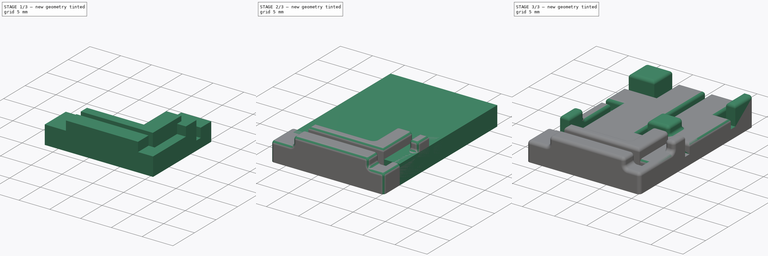
[diagram: build sequence overview — one tinted view per stage of 3, left to right]
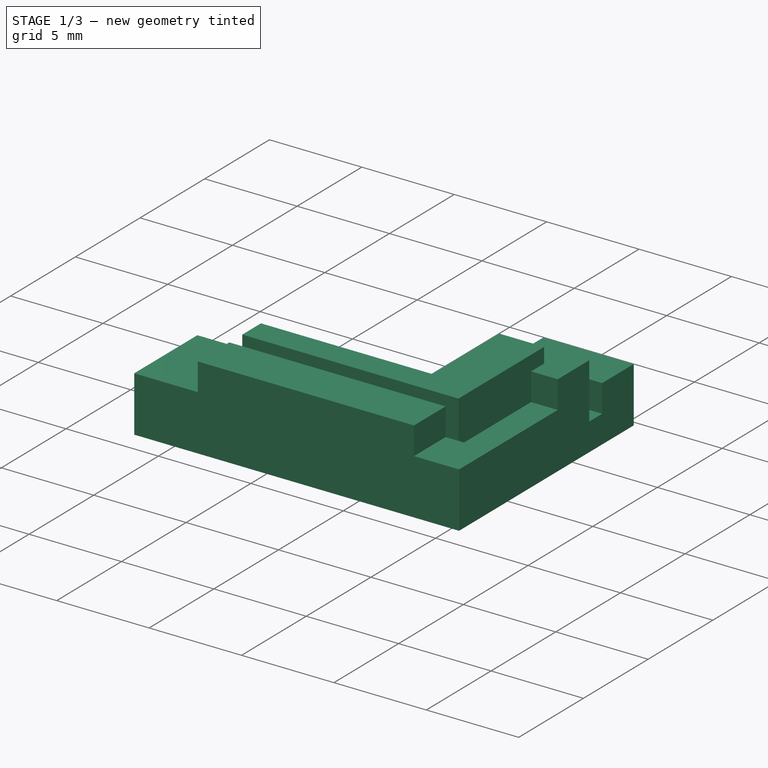
[diagram: stage 1 of 3 — iso view after this stage's code; geometry added in this stage tinted green]
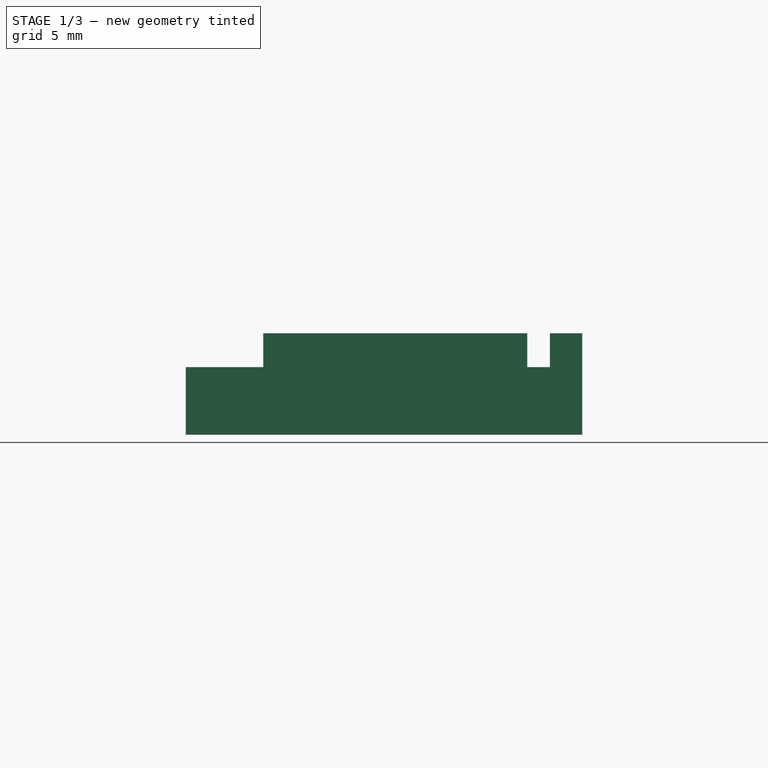
[diagram: stage 1 of 3 — front view after this stage's code; geometry added in this stage tinted green]
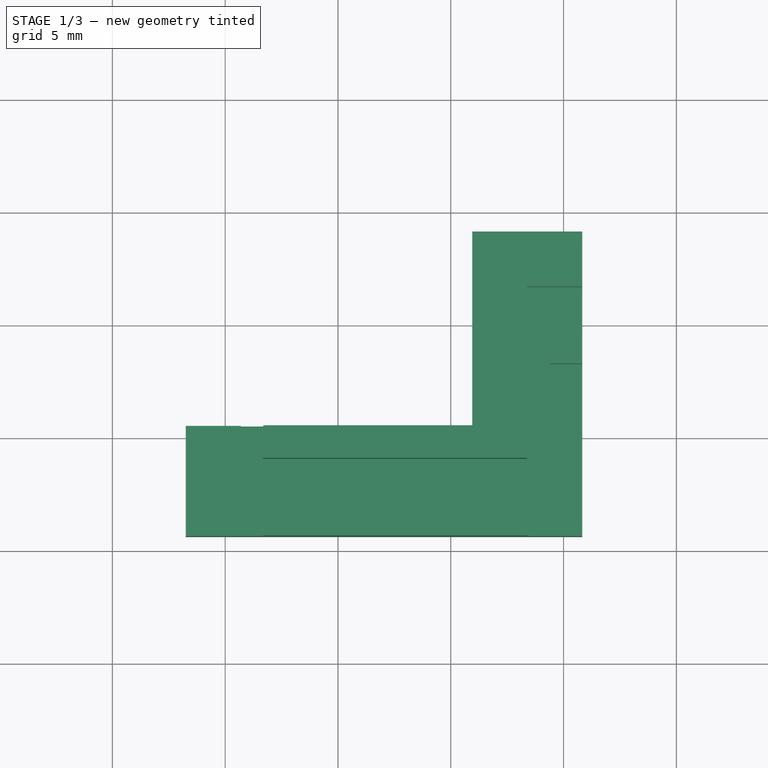
[diagram: stage 1 of 3 — top view after this stage's code; geometry added in this stage tinted green]
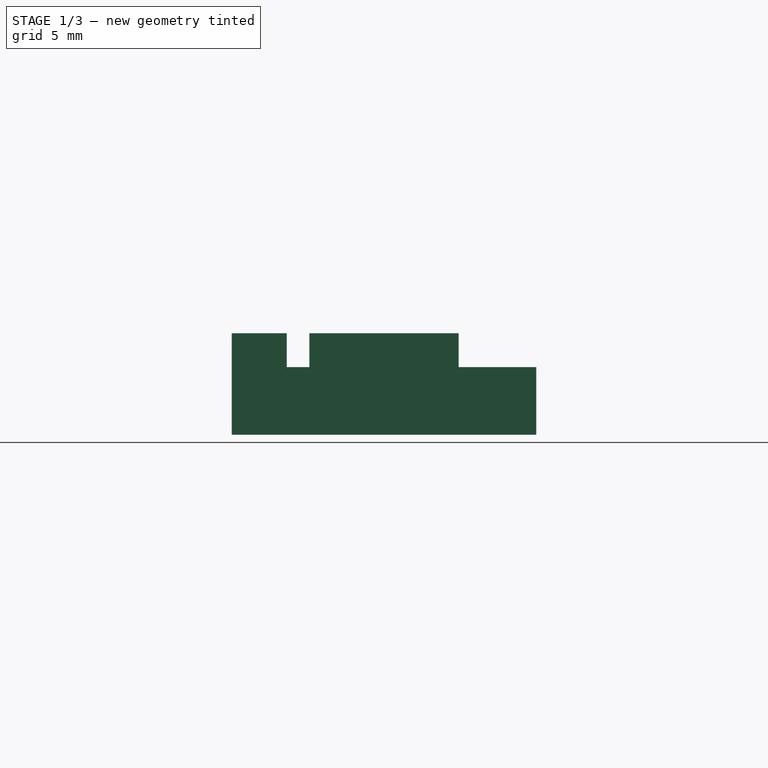
[diagram: stage 1 of 3 — right view after this stage's code; geometry added in this stage tinted green]
FCSTD DOCUMENT  (FreeCAD 0.19R23578 (Git))
Label: PCBGrid
License: All rights reserved
LicenseURL: http://en.wikipedia.org/wiki/All_rights_reserved
objects: Sketcher::SketchObject×7, PartDesign::Pad×4, PartDesign::Pocket×2, PartDesign::Fillet×2, PartDesign::Body×2, PartDesign::ShapeBinder×1
note: 26 computed .brp shape members not serialized (recipe doc carries the construction recipe); baked Part::Feature solids carry a one-line shape summary decoded from their .brp

FEATURE [Sketcher::SketchObject] Sketch
  MapMode = 5
  Support = -> [XY_Plane]
  sketch-geometry (136):
    g0: LineSegment StartX=-8.89 StartY=11.43 StartZ=0 EndX=-8.89 EndY=-11.43 EndZ=0
    g1: LineSegment StartX=-6.35 StartY=11.43 StartZ=0 EndX=-6.35 EndY=-11.43 EndZ=0
    g2: LineSegment StartX=-8.89 StartY=11.43 StartZ=0 EndX=-6.35 EndY=11.43 EndZ=0
    g3: LineSegment StartX=-6.35 StartY=11.43 StartZ=0 EndX=-3.81 EndY=11.43 EndZ=0
    g4: LineSegment StartX=-3.81 StartY=11.43 StartZ=0 EndX=-1.27 EndY=11.43 EndZ=0
    g5: LineSegment StartX=-1.27 StartY=11.43 StartZ=0 EndX=1.27 EndY=11.43 EndZ=0
    g6: LineSegment StartX=1.27 StartY=11.43 StartZ=0 EndX=3.81 EndY=11.43 EndZ=0
    g7: LineSegment StartX=3.81 StartY=11.43 StartZ=0 EndX=6.35 EndY=11.43 EndZ=0
    g8: LineSegment StartX=6.35 StartY=11.43 StartZ=0 EndX=8.89 EndY=11.43 EndZ=0
    g9: LineSegment StartX=8.89 StartY=11.43 StartZ=0 EndX=11.43 EndY=11.43 EndZ=0
    g10: LineSegment StartX=-8.89 StartY=11.43 StartZ=0 EndX=-11.43 EndY=11.43 EndZ=0
    g11: LineSegment StartX=-11.43 StartY=11.43 StartZ=0 EndX=-11.43 EndY=8.89 EndZ=0
    g12: LineSegment StartX=-11.43 StartY=8.89 StartZ=0 EndX=-11.43 EndY=6.35 EndZ=0
    g13: LineSegment StartX=-11.43 StartY=6.35 StartZ=0 EndX=-11.43 EndY=3.81 EndZ=0
    g14: LineSegment StartX=-11.43 StartY=3.81 StartZ=0 EndX=-11.43 EndY=1.27 EndZ=0
    g15: LineSegment StartX=-11.43 StartY=1.27 StartZ=0 EndX=-11.43 EndY=-1.27 EndZ=0
    g16: LineSegment StartX=-11.43 StartY=-1.27 StartZ=0 EndX=-11.43 EndY=-3.81 EndZ=0
    g17: LineSegment StartX=-11.43 StartY=-3.81 StartZ=0 EndX=-11.43 EndY=-6.35 EndZ=0
    g18: LineSegment StartX=-11.43 StartY=-6.35 StartZ=0 EndX=-11.43 EndY=-8.89 EndZ=0
    g19: LineSegment StartX=-11.43 StartY=-8.89 StartZ=0 EndX=-11.43 EndY=-11.43 EndZ=0
    g20: LineSegment StartX=-11.43 StartY=-11.43 StartZ=0 EndX=11.43 EndY=-11.43 EndZ=0
    g21: LineSegment StartX=11.43 StartY=-11.43 StartZ=0 EndX=11.43 EndY=11.43 EndZ=0
    g22: LineSegment StartX=-3.81 StartY=11.43 StartZ=0 EndX=-3.81 EndY=-11.43 EndZ=0
    g23: LineSegment StartX=-1.27 StartY=11.43 StartZ=0 EndX=-1.27 EndY=-11.43 EndZ=0
    g24: LineSegment StartX=1.27 StartY=11.43 StartZ=0 EndX=1.27 EndY=-11.43 EndZ=0
    g25: LineSegment StartX=3.81 StartY=11.43 StartZ=0 EndX=3.81 EndY=-11.43 EndZ=0
    g26: LineSegment StartX=6.35 StartY=11.43 StartZ=0 EndX=6.35 EndY=-11.43 EndZ=0
    g27: LineSegment StartX=8.89 StartY=11.43 StartZ=0 EndX=8.89 EndY=-11.43 EndZ=0
    g28: LineSegment StartX=-11.43 StartY=8.89 StartZ=0 EndX=11.43 EndY=8.89 EndZ=0
    g29: LineSegment StartX=-11.43 StartY=6.35 StartZ=0 EndX=11.43 EndY=6.35 EndZ=0
    g30: LineSegment StartX=-11.43 StartY=3.81 StartZ=0 EndX=11.43 EndY=3.81 EndZ=0
    g31: LineSegment StartX=-11.43 StartY=1.27 StartZ=0 EndX=11.43 EndY=1.27 EndZ=0
    g32: LineSegment StartX=-11.43 StartY=-1.27 StartZ=0 EndX=11.43 EndY=-1.27 EndZ=0
    g33: LineSegment StartX=-11.43 StartY=-3.81 StartZ=0 EndX=11.43 EndY=-3.81 EndZ=0
    g34: LineSegment StartX=-11.43 StartY=-6.35 StartZ=0 EndX=11.43 EndY=-6.35 EndZ=0
    g35: LineSegment StartX=-11.43 StartY=-8.89 StartZ=0 EndX=11.43 EndY=-8.89 EndZ=0
    g36: Circle CenterX=-11.43 CenterY=11.43 CenterZ=0 NormalX=0 NormalY=0 NormalZ=1 AngleXU=0 Radius=0.6
    g37: Circle CenterX=-8.89 CenterY=11.43 CenterZ=0 NormalX=0 NormalY=0 NormalZ=1 AngleXU=0 Radius=0.6
    g38: Circle CenterX=-6.35 CenterY=11.43 CenterZ=0 NormalX=0 NormalY=0 NormalZ=1 AngleXU=0 Radius=0.6
    g39: Circle CenterX=-3.81 CenterY=11.43 CenterZ=0 NormalX=0 NormalY=0 NormalZ=1 AngleXU=0 Radius=0.6
    g40: Circle CenterX=-1.27 CenterY=11.43 CenterZ=0 NormalX=0 NormalY=0 NormalZ=1 AngleXU=0 Radius=0.6
    g41: Circle CenterX=1.27 CenterY=11.43 CenterZ=0 NormalX=0 NormalY=0 NormalZ=1 AngleXU=0 Radius=0.6
    g42: Circle CenterX=3.81 CenterY=11.43 CenterZ=0 NormalX=0 NormalY=0 NormalZ=1 AngleXU=0 Radius=0.6
    g43: Circle CenterX=6.35 CenterY=11.43 CenterZ=0 NormalX=0 NormalY=0 NormalZ=1 AngleXU=0 Radius=0.6
    g44: Circle CenterX=8.89 CenterY=11.43 CenterZ=0 NormalX=0 NormalY=0 NormalZ=1 AngleXU=0 Radius=0.6
    g45: Circle CenterX=11.43 CenterY=11.43 CenterZ=0 NormalX=0 NormalY=0 NormalZ=1 AngleXU=0 Radius=0.6
    g46: Circle CenterX=-8.89 CenterY=8.89 CenterZ=0 NormalX=0 NormalY=0 NormalZ=1 AngleXU=0 Radius=0.6
    g47: Circle CenterX=-6.35 CenterY=8.89 CenterZ=0 NormalX=0 NormalY=0 NormalZ=1 AngleXU=0 Radius=0.6
    g48: Circle CenterX=-3.81 CenterY=8.89 CenterZ=0 NormalX=0 NormalY=0 NormalZ=1 AngleXU=0 Radius=0.6
    g49: Circle CenterX=-1.27 CenterY=8.89 CenterZ=0 NormalX=0 NormalY=0 NormalZ=1 AngleXU=0 Radius=0.6
    g50: Circle CenterX=1.27 CenterY=8.89 CenterZ=0 NormalX=0 NormalY=0 NormalZ=1 AngleXU=0 Radius=0.6
    g51: Circle CenterX=3.81 CenterY=8.89 CenterZ=0 NormalX=0 NormalY=0 NormalZ=1 AngleXU=0 Radius=0.6
    g52: Circle CenterX=6.35 CenterY=8.89 CenterZ=0 NormalX=0 NormalY=0 NormalZ=1 AngleXU=0 Radius=0.6
    g53: Circle CenterX=8.89 CenterY=8.89 CenterZ=0 NormalX=0 NormalY=0 NormalZ=1 AngleXU=0 Radius=0.6
    g54: Circle CenterX=-8.89 CenterY=6.35 CenterZ=0 NormalX=0 NormalY=0 NormalZ=1 AngleXU=0 Radius=0.6
    g55: Circle CenterX=-6.35 CenterY=6.35 CenterZ=0 NormalX=0 NormalY=0 NormalZ=1 AngleXU=0 Radius=0.6
    g56: Circle CenterX=-3.81 CenterY=6.35 CenterZ=0 NormalX=0 NormalY=0 NormalZ=1 AngleXU=0 Radius=0.6
    g57: Circle CenterX=-1.27 CenterY=6.35 CenterZ=0 NormalX=0 NormalY=0 NormalZ=1 AngleXU=0 Radius=0.6
    g58: Circle CenterX=1.27 CenterY=6.35 CenterZ=0 NormalX=0 NormalY=0 NormalZ=1 AngleXU=0 Radius=0.6
    g59: Circle CenterX=3.81 CenterY=6.35 CenterZ=0 NormalX=0 NormalY=0 NormalZ=1 AngleXU=0 Radius=0.6
    g60: Circle CenterX=6.35 CenterY=6.35 CenterZ=0 NormalX=0 NormalY=0 NormalZ=1 AngleXU=0 Radius=0.6
    g61: Circle CenterX=8.89 CenterY=6.35 CenterZ=0 NormalX=0 NormalY=0 NormalZ=1 AngleXU=0 Radius=0.6
    g62: Circle CenterX=-11.43 CenterY=8.89 CenterZ=0 NormalX=0 NormalY=0 NormalZ=1 AngleXU=0 Radius=0.6
    g63: Circle CenterX=-11.43 CenterY=6.35 CenterZ=0 NormalX=0 NormalY=0 NormalZ=1 AngleXU=0 Radius=0.6
    g64: Circle CenterX=-11.43 CenterY=3.81 CenterZ=0 NormalX=0 NormalY=0 NormalZ=1 AngleXU=0 Radius=0.6
    g65: Circle CenterX=-11.43 CenterY=1.27 CenterZ=0 NormalX=0 NormalY=0 NormalZ=1 AngleXU=0 Radius=0.6
    g66: Circle CenterX=-11.43 CenterY=-1.27 CenterZ=0 NormalX=0 NormalY=0 NormalZ=1 AngleXU=0 Radius=0.6
    g67: Circle CenterX=-11.43 CenterY=-3.81 CenterZ=0 NormalX=0 NormalY=0 NormalZ=1 AngleXU=0 Radius=0.6
    g68: Circle CenterX=-11.43 CenterY=-6.35 CenterZ=0 NormalX=0 NormalY=0 NormalZ=1 AngleXU=0 Radius=0.6
    g69: Circle CenterX=-11.43 CenterY=-8.89 CenterZ=0 NormalX=0 NormalY=0 NormalZ=1 AngleXU=0 Radius=0.6
    g70: Circle CenterX=-11.43 CenterY=-11.43 CenterZ=0 NormalX=0 NormalY=0 NormalZ=1 AngleXU=0 Radius=0.6
    g71: Circle CenterX=-8.89 CenterY=3.81 CenterZ=0 NormalX=0 NormalY=0 NormalZ=1 AngleXU=0 Radius=0.6
    g72: Circle CenterX=-8.89 CenterY=1.27 CenterZ=0 NormalX=0 NormalY=0 NormalZ=1 AngleXU=0 Radius=0.6
    g73: Circle CenterX=-8.89 CenterY=-1.27 CenterZ=0 NormalX=0 NormalY=0 NormalZ=1 AngleXU=0 Radius=0.6
    g74: Circle CenterX=-8.89 CenterY=-3.81 CenterZ=0 NormalX=0 NormalY=0 NormalZ=1 AngleXU=0 Radius=0.6
    g75: Circle CenterX=-8.89 CenterY=-6.35 CenterZ=0 NormalX=0 NormalY=0 NormalZ=1 AngleXU=0 Radius=0.6
    g76: Circle CenterX=-8.89 CenterY=-8.89 CenterZ=0 NormalX=0 NormalY=0 NormalZ=1 AngleXU=0 Radius=0.6
    g77: Circle CenterX=-8.89 CenterY=-11.43 CenterZ=0 NormalX=0 NormalY=0 NormalZ=1 AngleXU=0 Radius=0.6
    g78: Circle CenterX=-6.35 CenterY=-11.43 CenterZ=0 NormalX=0 NormalY=0 NormalZ=1 AngleXU=0 Radius=0.6
    g79: Circle CenterX=-3.81 CenterY=-11.43 CenterZ=0 NormalX=0 NormalY=0 NormalZ=1 AngleXU=0 Radius=0.6
    g80: Circle CenterX=-1.27 CenterY=-11.43 CenterZ=0 NormalX=0 NormalY=0 NormalZ=1 AngleXU=0 Radius=0.6
    g81: Circle CenterX=1.27 CenterY=-11.43 CenterZ=0 NormalX=0 NormalY=0 NormalZ=1 AngleXU=0 Radius=0.6
    g82: Circle CenterX=3.81 CenterY=-11.43 CenterZ=0 NormalX=0 NormalY=0 NormalZ=1 AngleXU=0 Radius=0.6
    g83: Circle CenterX=6.35 CenterY=-11.43 CenterZ=0 NormalX=0 NormalY=0 NormalZ=1 AngleXU=0 Radius=0.6
    g84: Circle CenterX=8.89 CenterY=-11.43 CenterZ=0 NormalX=0 NormalY=0 NormalZ=1 AngleXU=0 Radius=0.6
    g85: Circle CenterX=11.43 CenterY=-11.43 CenterZ=0 NormalX=0 NormalY=0 NormalZ=1 AngleXU=0 Radius=0.6
    g86: Circle CenterX=11.43 CenterY=-8.89 CenterZ=0 NormalX=0 NormalY=0 NormalZ=1 AngleXU=0 Radius=0.6
    g87: Circle CenterX=11.43 CenterY=-6.35 CenterZ=0 NormalX=0 NormalY=0 NormalZ=1 AngleXU=0 Radius=0.6
    g88: Circle CenterX=11.43 CenterY=-3.81 CenterZ=0 NormalX=0 NormalY=0 NormalZ=1 AngleXU=0 Radius=0.6
    g89: Circle CenterX=11.43 CenterY=-1.27 CenterZ=0 NormalX=0 NormalY=0 NormalZ=1 AngleXU=0 Radius=0.6
    g90: Circle CenterX=11.43 CenterY=1.27 CenterZ=0 NormalX=0 NormalY=0 NormalZ=1 AngleXU=0 Radius=0.6
    g91: Circle CenterX=11.43 CenterY=8.89 CenterZ=0 NormalX=0 NormalY=0 NormalZ=1 AngleXU=0 Radius=0.6
    g92: Circle CenterX=11.43 CenterY=6.35 CenterZ=0 NormalX=0 NormalY=0 NormalZ=1 AngleXU=0 Radius=0.6
    g93: Circle CenterX=11.43 CenterY=3.81 CenterZ=0 NormalX=0 NormalY=0 NormalZ=1 AngleXU=0 Radius=0.6
    g94: Circle CenterX=-6.35 CenterY=3.81 CenterZ=0 NormalX=0 NormalY=0 NormalZ=1 AngleXU=0 Radius=0.6
    g95: Circle CenterX=-6.35 CenterY=1.27 CenterZ=0 NormalX=0 NormalY=0 NormalZ=1 AngleXU=0 Radius=0.6
    g96: Circle CenterX=-6.35 CenterY=-1.27 CenterZ=0 NormalX=0 NormalY=0 NormalZ=1 AngleXU=0 Radius=0.6
    g97: Circle CenterX=-6.35 CenterY=-3.81 CenterZ=0 NormalX=0 NormalY=0 NormalZ=1 AngleXU=0 Radius=0.6
    g98: Circle CenterX=-6.35 CenterY=-6.35 CenterZ=0 NormalX=0 NormalY=0 NormalZ=1 AngleXU=0 Radius=0.6
    g99: Circle CenterX=-6.35 CenterY=-8.89 CenterZ=0 NormalX=0 NormalY=0 NormalZ=1 AngleXU=0 Radius=0.6
    g100: Circle CenterX=-3.81 CenterY=-8.89 CenterZ=0 NormalX=0 NormalY=0 NormalZ=1 AngleXU=0 Radius=0.6
    g101: Circle CenterX=-3.81 CenterY=-6.35 CenterZ=0 NormalX=0 NormalY=0 NormalZ=1 AngleXU=0 Radius=0.6
    g102: Circle CenterX=-3.81 CenterY=-3.81 CenterZ=0 NormalX=0 NormalY=0 NormalZ=1 AngleXU=0 Radius=0.6
    g103: Circle CenterX=-3.81 CenterY=-1.27 CenterZ=0 NormalX=0 NormalY=0 NormalZ=1 AngleXU=0 Radius=0.6
    g104: Circle CenterX=-3.81 CenterY=1.27 CenterZ=0 NormalX=0 NormalY=0 NormalZ=1 AngleXU=0 Radius=0.6
    g105: Circle CenterX=-3.81 CenterY=3.81 CenterZ=0 NormalX=0 NormalY=0 NormalZ=1 AngleXU=0 Radius=0.6
    g106: Circle CenterX=-1.27 CenterY=3.81 CenterZ=0 NormalX=0 NormalY=0 NormalZ=1 AngleXU=0 Radius=0.6
    g107: Circle CenterX=-1.27 CenterY=1.27 CenterZ=0 NormalX=0 NormalY=0 NormalZ=1 AngleXU=0 Radius=0.6
    g108: Circle CenterX=-1.27 CenterY=-1.27 CenterZ=0 NormalX=0 NormalY=0 NormalZ=1 AngleXU=0 Radius=0.6
    g109: Circle CenterX=-1.27 CenterY=-3.81 CenterZ=0 NormalX=0 NormalY=0 NormalZ=1 AngleXU=0 Radius=0.6
    g110: Circle CenterX=-1.27 CenterY=-6.35 CenterZ=0 NormalX=0 NormalY=0 NormalZ=1 AngleXU=0 Radius=0.6
    g111: Circle CenterX=-1.27 CenterY=-8.89 CenterZ=0 NormalX=0 NormalY=0 NormalZ=1 AngleXU=0 Radius=0.6
    g112: Circle CenterX=1.27 CenterY=-8.89 CenterZ=0 NormalX=0 NormalY=0 NormalZ=1 AngleXU=0 Radius=0.6
    g113: Circle CenterX=1.27 CenterY=-6.35 CenterZ=0 NormalX=0 NormalY=0 NormalZ=1 AngleXU=0 Radius=0.6
    g114: Circle CenterX=1.27 CenterY=-3.81 CenterZ=0 NormalX=0 NormalY=0 NormalZ=1 AngleXU=0 Radius=0.6
    g115: Circle CenterX=1.27 CenterY=-1.27 CenterZ=0 NormalX=0 NormalY=0 NormalZ=1 AngleXU=0 Radius=0.6
    g116: Circle CenterX=1.27 CenterY=1.27 CenterZ=0 NormalX=0 NormalY=0 NormalZ=1 AngleXU=0 Radius=0.6
    g117: Circle CenterX=1.27 CenterY=3.81 CenterZ=0 NormalX=0 NormalY=0 NormalZ=1 AngleXU=0 Radius=0.6
    g118: Circle CenterX=3.81 CenterY=3.81 CenterZ=0 NormalX=0 NormalY=0 NormalZ=1 AngleXU=0 Radius=0.6
    g119: Circle CenterX=3.81 CenterY=1.27 CenterZ=0 NormalX=0 NormalY=0 NormalZ=1 AngleXU=0 Radius=0.6
    g120: Circle CenterX=3.81 CenterY=-1.27 CenterZ=0 NormalX=0 NormalY=0 NormalZ=1 AngleXU=0 Radius=0.6
    g121: Circle CenterX=3.81 CenterY=-3.81 CenterZ=0 NormalX=0 NormalY=0 NormalZ=1 AngleXU=0 Radius=0.6
    g122: Circle CenterX=3.81 CenterY=-6.35 CenterZ=0 NormalX=0 NormalY=0 NormalZ=1 AngleXU=0 Radius=0.6
    g123: Circle CenterX=3.81 CenterY=-8.89 CenterZ=0 NormalX=0 NormalY=0 NormalZ=1 AngleXU=0 Radius=0.6
    g124: Circle CenterX=6.35 CenterY=-8.89 CenterZ=0 NormalX=0 NormalY=0 NormalZ=1 AngleXU=0 Radius=0.6
    g125: Circle CenterX=6.35 CenterY=-6.35 CenterZ=0 NormalX=0 NormalY=0 NormalZ=1 AngleXU=0 Radius=0.6
    g126: Circle CenterX=6.35 CenterY=-3.81 CenterZ=0 NormalX=0 NormalY=0 NormalZ=1 AngleXU=0 Radius=0.6
    g127: Circle CenterX=6.35 CenterY=-1.27 CenterZ=0 NormalX=0 NormalY=0 NormalZ=1 AngleXU=0 Radius=0.6
    g128: Circle CenterX=6.35 CenterY=1.27 CenterZ=0 NormalX=0 NormalY=0 NormalZ=1 AngleXU=0 Radius=0.6
    g129: Circle CenterX=6.35 CenterY=3.81 CenterZ=0 NormalX=0 NormalY=0 NormalZ=1 AngleXU=0 Radius=0.6
    g130: Circle CenterX=8.89 CenterY=3.81 CenterZ=0 NormalX=0 NormalY=0 NormalZ=1 AngleXU=0 Radius=0.6
    g131: Circle CenterX=8.89 CenterY=1.27 CenterZ=0 NormalX=0 NormalY=0 NormalZ=1 AngleXU=0 Radius=0.6
    g132: Circle CenterX=8.89 CenterY=-1.27 CenterZ=0 NormalX=0 NormalY=0 NormalZ=1 AngleXU=0 Radius=0.6
    g133: Circle CenterX=8.89 CenterY=-3.81 CenterZ=0 NormalX=0 NormalY=0 NormalZ=1 AngleXU=0 Radius=0.6
    g134: Circle CenterX=8.89 CenterY=-6.35 CenterZ=0 NormalX=0 NormalY=0 NormalZ=1 AngleXU=0 Radius=0.6
    g135: Circle CenterX=8.89 CenterY=-8.89 CenterZ=0 NormalX=0 NormalY=0 NormalZ=1 AngleXU=0 Radius=0.6
  constraints (371):
    c: Vertical(g0)
    c: Vertical(g1)
    c: DistanceX(g0,g1) = 2.54
    c: Coincident(g2,g0)
    c: Coincident(g2,g1)
    c: Horizontal(g2)
    c: Coincident(g3,g1)
    c: Horizontal(g3)
    c: Coincident(g4,g3)
    c: Horizontal(g4)
    c: Coincident(g5,g4)
    c: Horizontal(g5)
    c: Coincident(g6,g5)
    c: Horizontal(g6)
    c: Coincident(g7,g6)
    c: Horizontal(g7)
    c: Coincident(g8,g7)
    c: Horizontal(g8)
    c: Coincident(g9,g8)
    c: Horizontal(g9)
    c: Coincident(g10,g0)
    c: Horizontal(g10)
    c: Equal(g10,g2)
    c: Equal(g2,g3)
    c: Equal(g3,g4)
    c: Equal(g4,g5)
    c: Equal(g5,g6)
    c: Equal(g6,g7)
    c: Equal(g7,g8)
    c: Equal(g8,g9)
    c: Coincident(g11,g10)
    c: Vertical(g11)
    c: Coincident(g12,g11)
    c: Vertical(g12)
    c: Coincident(g13,g12)
    c: Vertical(g13)
    c: Coincident(g14,g13)
    c: Vertical(g14)
    c: Coincident(g15,g14)
    c: Vertical(g15)
    c: Coincident(g16,g15)
    c: Vertical(g16)
    c: Coincident(g17,g16)
    c: Vertical(g17)
    c: Coincident(g18,g17)
    c: Vertical(g18)
    c: Coincident(g19,g18)
    c: Vertical(g19)
    c: Equal(g11,g12)
    c: Equal(g12,g13)
    c: Equal(g13,g14)
    c: Equal(g14,g15)
    c: Equal(g15,g16)
    c: Equal(g16,g17)
    c: Equal(g17,g18)
    c: Equal(g18,g19)
    c: Equal(g19,g10)
    c: Coincident(g20,g19)
    c: Horizontal(g20)
    c: Coincident(g21,g20)
    c: Coincident(g21,g9)
    c: Vertical(g21)
    c: PointOnObject(g0,g20)
    c: PointOnObject(g1,g20)
    c: Coincident(g22,g3)
    c: PointOnObject(g22,g20)
    c: Vertical(g22)
    c: Coincident(g23,g4)
    c: PointOnObject(g23,g20)
    c: Vertical(g23)
    c: Coincident(g24,g5)
    c: PointOnObject(g24,g20)
    c: Vertical(g24)
    c: Coincident(g25,g6)
    c: PointOnObject(g25,g20)
    c: Vertical(g25)
    c: Coincident(g26,g7)
    c: PointOnObject(g26,g20)
    c: Vertical(g26)
    c: Coincident(g27,g8)
    c: PointOnObject(g27,g20)
    c: Vertical(g27)
    c: Coincident(g28,g11)
    c: PointOnObject(g28,g21)
    c: Horizontal(g28)
    c: Coincident(g29,g12)
    c: PointOnObject(g29,g21)
    c: Horizontal(g29)
    c: Coincident(g30,g13)
    c: PointOnObject(g30,g21)
    c: Horizontal(g30)
    c: Coincident(g31,g14)
    c: PointOnObject(g31,g21)
    c: Horizontal(g31)
    c: Coincident(g32,g15)
    c: PointOnObject(g32,g21)
    c: Horizontal(g32)
    c: Coincident(g33,g16)
    c: PointOnObject(g33,g21)
    c: Horizontal(g33)
    c: Coincident(g34,g17)
    c: PointOnObject(g34,g21)
    c: Horizontal(g34)
    c: Coincident(g35,g18)
    c: PointOnObject(g35,g21)
    c: Horizontal(g35)
    c: Coincident(g36,g10)
    c: Coincident(g37,g0)
    c: Coincident(g38,g1)
    c: Coincident(g39,g3)
    c: Coincident(g40,g4)
    c: Coincident(g41,g5)
    c: Coincident(g42,g6)
    c: Coincident(g43,g7)
    c: Coincident(g44,g8)
    c: Coincident(g45,g9)
    c: PointOnObject(g46,g28)
    c: PointOnObject(g47,g28)
    c: PointOnObject(g48,g28)
    c: PointOnObject(g49,g28)
    c: PointOnObject(g50,g28)
    c: PointOnObject(g51,g28)
    c: PointOnObject(g52,g28)
    c: PointOnObject(g53,g28)
    c: PointOnObject(g54,g29)
    c: PointOnObject(g55,g29)
    c: PointOnObject(g56,g29)
    c: PointOnObject(g57,g29)
    c: PointOnObject(g58,g29)
    c: PointOnObject(g59,g29)
    c: PointOnObject(g60,g29)
    c: PointOnObject(g61,g29)
    c: Coincident(g62,g11)
    c: Coincident(g63,g12)
    c: Coincident(g64,g13)
    c: Coincident(g65,g14)
    c: Coincident(g66,g15)
    c: Coincident(g67,g16)
    c: Coincident(g68,g17)
    c: Coincident(g69,g18)
    c: Coincident(g70,g19)
    c: PointOnObject(g71,g30)
    c: PointOnObject(g72,g31)
    c: PointOnObject(g73,g32)
    c: PointOnObject(g74,g33)
    c: PointOnObject(g75,g34)
    c: PointOnObject(g76,g35)
    c: Coincident(g77,g0)
    c: Coincident(g78,g1)
    c: Coincident(g79,g22)
    c: Coincident(g80,g23)
    c: Coincident(g81,g24)
    c: Coincident(g82,g25)
    c: Coincident(g83,g26)
    c: Coincident(g84,g27)
    c: Coincident(g85,g20)
    c: Coincident(g86,g35)
    c: Coincident(g87,g34)
    c: Coincident(g88,g33)
    c: Coincident(g89,g32)
    c: Coincident(g90,g31)
    c: Coincident(g91,g28)
    c: Coincident(g92,g29)
    c: Coincident(g93,g30)
    c: PointOnObject(g94,g30)
    c: PointOnObject(g95,g31)
    c: PointOnObject(g96,g32)
    c: PointOnObject(g97,g33)
    c: PointOnObject(g98,g34)
    c: PointOnObject(g99,g35)
    c: PointOnObject(g100,g35)
    c: PointOnObject(g101,g34)
    c: PointOnObject(g102,g33)
    c: PointOnObject(g103,g32)
    c: PointOnObject(g104,g31)
    c: PointOnObject(g105,g30)
    c: PointOnObject(g106,g30)
    c: PointOnObject(g107,g31)
    c: PointOnObject(g108,g32)
    c: PointOnObject(g109,g33)
    c: PointOnObject(g110,g34)
    c: PointOnObject(g111,g35)
    c: PointOnObject(g112,g35)
    c: PointOnObject(g113,g34)
    c: PointOnObject(g114,g33)
    c: PointOnObject(g115,g32)
    c: PointOnObject(g116,g31)
    c: PointOnObject(g117,g30)
    c: PointOnObject(g118,g30)
    c: PointOnObject(g119,g31)
    c: PointOnObject(g120,g32)
    c: PointOnObject(g121,g33)
    c: PointOnObject(g122,g34)
    c: PointOnObject(g123,g35)
    c: PointOnObject(g124,g35)
    c: PointOnObject(g125,g34)
    c: PointOnObject(g126,g33)
    c: PointOnObject(g127,g32)
    c: PointOnObject(g128,g31)
    c: PointOnObject(g129,g30)
    c: PointOnObject(g130,g30)
    c: PointOnObject(g131,g31)
    c: PointOnObject(g132,g32)
    c: PointOnObject(g133,g33)
    c: PointOnObject(g134,g34)
    c: PointOnObject(g135,g35)
    c: Equal(g36,g37)
    c: Equal(g37,g38)
    c: Equal(g38,g39)
    c: Equal(g39,g40)
    c: Equal(g40,g41)
    c: Equal(g41,g42)
    c: Equal(g42,g43)
    c: Equal(g43,g44)
    c: Equal(g44,g45)
    c: Equal(g45,g46)
    c: Equal(g46,g47)
    c: Equal(g47,g48)
    c: Equal(g48,g49)
    c: Equal(g49,g50)
    c: Equal(g50,g51)
    c: Equal(g51,g52)
    c: Equal(g52,g53)
    c: Equal(g53,g54)
    c: Equal(g54,g55)
    c: Equal(g55,g56)
    c: Equal(g56,g57)
    c: Equal(g57,g58)
    c: Equal(g58,g59)
    c: Equal(g59,g60)
    c: Equal(g60,g61)
    c: Equal(g61,g62)
    c: Equal(g62,g63)
    c: Equal(g63,g64)
    c: Equal(g64,g65)
    c: Equal(g65,g66)
    c: Equal(g66,g67)
    c: Equal(g67,g68)
    c: Equal(g68,g69)
    c: Equal(g69,g70)
    c: Equal(g70,g71)
    c: Equal(g71,g72)
    c: Equal(g72,g73)
    c: Equal(g73,g74)
    c: Equal(g74,g75)
    c: Equal(g75,g76)
    c: Equal(g76,g77)
    c: Equal(g77,g78)
    c: Equal(g78,g79)
    c: Equal(g79,g80)
    c: Equal(g80,g81)
    c: Equal(g81,g82)
    c: Equal(g82,g83)
    c: Equal(g83,g84)
    c: Equal(g84,g85)
    c: Equal(g85,g86)
    c: Equal(g86,g87)
    c: Equal(g87,g88)
    c: Equal(g88,g89)
    c: Equal(g89,g90)
    c: Equal(g90,g91)
    c: Equal(g91,g92)
    c: Equal(g92,g93)
    c: Equal(g93,g94)
    c: Equal(g94,g95)
    c: Equal(g95,g96)
    c: Equal(g96,g97)
    c: Equal(g97,g98)
    c: Equal(g98,g99)
    c: Equal(g99,g100)
    c: Equal(g100,g101)
    c: Equal(g101,g102)
    c: Equal(g102,g103)
    c: Equal(g103,g104)
    c: Equal(g104,g105)
    c: Equal(g105,g106)
    c: Equal(g106,g107)
    c: Equal(g107,g108)
    c: Equal(g108,g109)
    c: Equal(g109,g110)
    c: Equal(g110,g111)
    c: Equal(g111,g112)
    c: Equal(g112,g113)
    c: Equal(g113,g114)
    c: Equal(g114,g115)
    c: Equal(g115,g116)
    c: Equal(g116,g117)
    c: Equal(g117,g118)
    c: Equal(g118,g119)
    c: Equal(g119,g120)
    c: Equal(g120,g121)
    c: Equal(g121,g122)
    c: Equal(g122,g123)
    c: Equal(g123,g124)
    c: Equal(g124,g125)
    c: Equal(g125,g126)
    c: Equal(g126,g127)
    c: Equal(g127,g128)
    c: Equal(g128,g129)
    c: Equal(g129,g130)
    c: Equal(g130,g131)
    c: Equal(g131,g132)
    c: Equal(g132,g133)
    c: Equal(g133,g134)
    c: Equal(g134,g135)
    c: Diameter(g36) = 1.2
    c: PointOnObject(g46,g0)
    c: PointOnObject(g54,g0)
    c: PointOnObject(g71,g0)
    c: PointOnObject(g72,g0)
    c: PointOnObject(g73,g0)
    c: PointOnObject(g74,g0)
    c: PointOnObject(g75,g0)
    c: PointOnObject(g76,g0)
    c: PointOnObject(g47,g1)
    c: PointOnObject(g55,g1)
    c: PointOnObject(g94,g1)
    c: PointOnObject(g95,g1)
    c: PointOnObject(g96,g1)
    c: PointOnObject(g97,g1)
    c: PointOnObject(g98,g1)
    c: PointOnObject(g99,g1)
    c: PointOnObject(g48,g22)
    c: PointOnObject(g56,g22)
    c: PointOnObject(g105,g22)
    c: PointOnObject(g104,g22)
    c: PointOnObject(g103,g22)
    c: PointOnObject(g102,g22)
    c: PointOnObject(g101,g22)
    c: PointOnObject(g100,g22)
    c: PointOnObject(g49,g23)
    c: PointOnObject(g57,g23)
    c: PointOnObject(g106,g23)
    c: PointOnObject(g107,g23)
    c: PointOnObject(g108,g23)
    c: PointOnObject(g109,g23)
    c: PointOnObject(g110,g23)
    c: PointOnObject(g111,g23)
    c: PointOnObject(g50,g24)
    c: PointOnObject(g58,g24)
    c: PointOnObject(g112,g24)
    c: PointOnObject(g113,g24)
    c: PointOnObject(g114,g24)
    c: PointOnObject(g115,g24)
    c: PointOnObject(g116,g24)
    c: PointOnObject(g117,g24)
    c: PointOnObject(g51,g25)
    c: PointOnObject(g59,g25)
    c: PointOnObject(g118,g25)
    c: PointOnObject(g119,g25)
    c: PointOnObject(g120,g25)
    c: PointOnObject(g121,g25)
    c: PointOnObject(g122,g25)
    c: PointOnObject(g123,g25)
    c: PointOnObject(g52,g26)
    c: PointOnObject(g60,g26)
    c: PointOnObject(g124,g26)
    c: PointOnObject(g125,g26)
    c: PointOnObject(g126,g26)
    c: PointOnObject(g127,g26)
    c: PointOnObject(g128,g26)
    c: PointOnObject(g129,g26)
    c: PointOnObject(g53,g27)
    c: PointOnObject(g61,g27)
    c: PointOnObject(g130,g27)
    c: PointOnObject(g131,g27)
    c: PointOnObject(g132,g27)
    c: PointOnObject(g133,g27)
    c: PointOnObject(g134,g27)
    c: PointOnObject(g135,g27)
    c: Symmetric(g19,g9,g-1)
FEATURE [Sketcher::SketchObject] Sketch001
  AttachmentOffset = pos=(0,0,3) rot=(0,0,1;0rad)
  ExternalGeometry = -> [Sketch]
  MapMode = 5
  Placement = pos=(0,0,3) rot=(0,0,1;0rad)
  Support = -> [XY_Plane]
  sketch-geometry (12):
    g0: LineSegment StartX=9.39 StartY=-4.31 StartZ=0 EndX=10.83 EndY=-4.31 EndZ=0
    g1: LineSegment StartX=10.83 StartY=-4.31 StartZ=0 EndX=10.83 EndY=-3.31 EndZ=0
    g2: LineSegment StartX=10.83 StartY=-3.31 StartZ=0 EndX=8.39 EndY=-3.31 EndZ=0
    g3: LineSegment StartX=9.39 StartY=-4.31 StartZ=0 EndX=9.39 EndY=-11.93 EndZ=0
    g4: LineSegment StartX=8.39 StartY=-3.31 StartZ=0 EndX=8.39 EndY=-10.93 EndZ=0
    g5: LineSegment StartX=8.39 StartY=-3.31 StartZ=0 EndX=11.43 EndY=-6.35 EndZ=0
    g6: LineSegment StartX=9.39 StartY=-11.93 StartZ=0 EndX=-4.31 EndY=-11.93 EndZ=0
    g7: LineSegment StartX=8.39 StartY=-10.93 StartZ=0 EndX=-3.31 EndY=-10.93 EndZ=0
    g8: LineSegment StartX=-4.31 StartY=-11.93 StartZ=0 EndX=-1.27 EndY=-8.89 EndZ=0
    g9: LineSegment StartX=-4.31 StartY=-11.93 StartZ=0 EndX=-4.31 EndY=-9.49 EndZ=0
    g10: LineSegment StartX=-4.31 StartY=-9.49 StartZ=0 EndX=-3.31 EndY=-9.49 EndZ=0
    g11: LineSegment StartX=-3.31 StartY=-9.49 StartZ=0 EndX=-3.31 EndY=-10.93 EndZ=0
  constraints (33):
    c: Horizontal(g0)
    c: Coincident(g1,g0)
    c: Vertical(g1)
    c: Coincident(g2,g1)
    c: Horizontal(g2)
    c: DistanceY(g1,g1) = 1  'WireWidth'
    c: Coincident(g3,g0)
    c: Vertical(g3)
    c: Coincident(g4,g2)
    c: Symmetric(g3,g4,g-3)
    c: Equal(g3,g4)
    c: Coincident(g5,g2)
    c: PointOnObject(g0,g5)
    c: Vertical(g4)
    c: Coincident(g6,g3)
    c: Horizontal(g6)
    c: Coincident(g7,g4)
    c: Horizontal(g7)
    c: Coincident(g8,g6)
    c: PointOnObject(g7,g8)
    c: Coincident(g6,g9)
    c: Vertical(g9)
    c: Coincident(g9,g10)
    c: Coincident(g10,g11)
    c: Coincident(g11,g7)
    c: Vertical(g11)
    c: Horizontal(g10)
    c: PointOnObject(g-6,g8)
    c: Coincident(g8,g-4)
    c: Tangent(g10,g-5)
    c: Coincident(g5,g-9)
    c: PointOnObject(g-7,g5)
    c: Tangent(g1,g-8)
FEATURE [Sketcher::SketchObject] Sketch002
  ExternalGeometry = -> [Sketch001]
  MapMode = 5
  Support = -> [XY_Plane]
  sketch-geometry (10):
    g0: LineSegment StartX=5.95 StartY=-9.49 StartZ=0 EndX=-6.75 EndY=-9.49 EndZ=0
    g1: LineSegment StartX=-6.75 StartY=-9.49 StartZ=0 EndX=-6.75 EndY=-14.37 EndZ=0
    g2: LineSegment StartX=-6.75 StartY=-14.37 StartZ=0 EndX=10.83 EndY=-14.37 EndZ=0
    g3: LineSegment StartX=10.83 StartY=-14.37 StartZ=0 EndX=10.83 EndY=-0.87 EndZ=0
    g4: LineSegment StartX=10.83 StartY=-0.87 StartZ=0 EndX=5.95 EndY=-0.87 EndZ=0
    g5: LineSegment StartX=5.95 StartY=-0.87 StartZ=0 EndX=5.95 EndY=-9.49 EndZ=0
    g6: LineSegment StartX=8.39 StartY=-3.31 StartZ=0 EndX=8.39 EndY=-0.87 EndZ=0
    g7: LineSegment StartX=8.39 StartY=-3.31 StartZ=0 EndX=5.95 EndY=-3.31 EndZ=0
    g8: LineSegment StartX=-4.31 StartY=-11.93 StartZ=0 EndX=-4.31 EndY=-14.37 EndZ=0
    g9: LineSegment StartX=-4.31 StartY=-11.93 StartZ=0 EndX=-6.75 EndY=-11.93 EndZ=0
  constraints (31):
    c: Horizontal(g0)
    c: Coincident(g0,g1)
    c: Vertical(g1)
    c: Coincident(g1,g2)
    c: Horizontal(g2)
    c: Coincident(g2,g3)
    c: Vertical(g3)
    c: Coincident(g3,g4)
    c: Horizontal(g4)
    c: Coincident(g4,g5)
    c: Vertical(g5)
    c: Coincident(g0,g5)
    c: PointOnObject(g6,g4)
    c: Vertical(g6)
    c: Horizontal(g7)
    c: PointOnObject(g8,g2)
    c: Vertical(g8)
    c: Coincident(g9,g8)
    c: PointOnObject(g9,g1)
    c: Horizontal(g9)
    c: Equal(g9,g8)
    c: Equal(g6,g7)
    c: PointOnObject(g7,g5)
    c: DistanceY(g1,g1) = 4.88
    c: Equal(g9,g7)
    c: Coincident(g6,g7)
    c: Coincident(g6,g-5)
    c: Equal(g6,g-5)
    c: Coincident(g8,g-3)
    c: PointOnObject(g-4,g0)
    c: PointOnObject(g-5,g3)
FEATURE [PartDesign::Pad] Pad
  Direction = (1,1,1)
  Length = 3
  Length2 = 100
  Profile = -> Sketch002
  Type = 0
  expr: Length = Sketch001.AttachmentOffset.Base.z
FEATURE [PartDesign::Pocket] Pocket
  BaseFeature = -> Pad
  Length = 1.5
  Length2 = 100
  Profile = -> Sketch001
  Type = 0
  expr: Length = Sketch001.AttachmentOffset.Base.z / 2
FEATURE [PartDesign::ShapeBinder] ShapeBinder
  Support = -> [Sketch]
  TraceSupport = false
FEATURE [Sketcher::SketchObject] Sketch003
  AttachmentOffset = pos=(0,0,3) rot=(0,0,1;0rad)
  ExternalGeometry = -> [ShapeBinder]
  MapMode = 5
  Placement = pos=(0,0,3) rot=(0,0,1;0rad)
  Support = -> [XY_Plane001]
  expr: .AttachmentOffset.Base.z = Sketch001.AttachmentOffset.Base.z
  expr: Constraints[36] = Sketch001.Constraints.WireWidth
  sketch-geometry (31):
    g0: LineSegment StartX=10.83 StartY=-3.31 StartZ=0 EndX=10.83 EndY=-4.31 EndZ=0
    g1: LineSegment StartX=10.83 StartY=-4.31 StartZ=0 EndX=3.31 EndY=-4.31 EndZ=0
    g2: LineSegment StartX=3.31 StartY=-4.31 StartZ=0 EndX=3.31 EndY=10.83 EndZ=0
    g3: LineSegment StartX=3.31 StartY=10.83 StartZ=0 EndX=4.31 EndY=10.83 EndZ=0
    g4: LineSegment StartX=4.31 StartY=10.83 StartZ=0 EndX=4.31 EndY=-3.31 EndZ=0
    g5: LineSegment StartX=4.31 StartY=-3.31 StartZ=0 EndX=10.83 EndY=-3.31 EndZ=0
    g6: LineSegment StartX=8.39 StartY=10.83 StartZ=0 EndX=9.39 EndY=10.83 EndZ=0
    g7: LineSegment StartX=9.39 StartY=10.83 StartZ=0 EndX=9.39 EndY=6.85 EndZ=0
    g8: LineSegment StartX=9.39 StartY=6.85 StartZ=0 EndX=10.83 EndY=6.85 EndZ=0
    g9: LineSegment StartX=10.83 StartY=6.85 StartZ=0 EndX=10.83 EndY=5.85 EndZ=0
    g10: LineSegment StartX=10.83 StartY=5.85 StartZ=0 EndX=8.39 EndY=5.85 EndZ=0
    g11: LineSegment StartX=8.39 StartY=5.85 StartZ=0 EndX=8.39 EndY=10.83 EndZ=0
    g12: LineSegment StartX=-1.77 StartY=10.83 StartZ=0 EndX=-0.77 EndY=10.83 EndZ=0
    g13: LineSegment StartX=-0.77 StartY=10.83 StartZ=0 EndX=-0.77 EndY=5.85 EndZ=0
    g14: LineSegment StartX=-0.77 StartY=5.85 StartZ=0 EndX=-5.75 EndY=5.85 EndZ=0
    g15: LineSegment StartX=-5.75 StartY=5.85 StartZ=0 EndX=-5.75 EndY=6.85 EndZ=0
    g16: LineSegment StartX=-5.75 StartY=6.85 StartZ=0 EndX=-1.77 EndY=6.85 EndZ=0
    g17: LineSegment StartX=-1.77 StartY=6.85 StartZ=0 EndX=-1.77 EndY=10.83 EndZ=0
    g18: LineSegment StartX=8.39 StartY=5.85 StartZ=0 EndX=11.43 EndY=8.89 EndZ=0
    g19: LineSegment StartX=3.31 StartY=-4.31 StartZ=0 EndX=6.35 EndY=-1.27 EndZ=0
    g20: LineSegment StartX=-0.77 StartY=5.85 StartZ=0 EndX=-3.81 EndY=8.89 EndZ=0
    g21: LineSegment StartX=-5.75 StartY=1.77 StartZ=0 EndX=-5.75 EndY=0.77 EndZ=0
    g22: LineSegment StartX=-5.75 StartY=0.77 StartZ=0 EndX=-4.31 EndY=0.77 EndZ=0
    g23: LineSegment StartX=-4.31 StartY=0.77 StartZ=0 EndX=-4.31 EndY=-8.39 EndZ=0
    g24: LineSegment StartX=-4.31 StartY=-8.39 StartZ=0 EndX=-5.75 EndY=-8.39 EndZ=0
    g25: LineSegment StartX=-5.75 StartY=-8.39 StartZ=0 EndX=-5.75 EndY=-9.39 EndZ=0
    g26: LineSegment StartX=-5.75 StartY=-9.39 StartZ=0 EndX=-3.31 EndY=-9.39 EndZ=0
    g27: LineSegment StartX=-3.31 StartY=-9.39 StartZ=0 EndX=-3.31 EndY=1.77 EndZ=0
    g28: LineSegment StartX=-3.31 StartY=1.77 StartZ=0 EndX=-5.75 EndY=1.77 EndZ=0
    g29: LineSegment StartX=-3.31 StartY=1.77 StartZ=0 EndX=-6.35 EndY=-1.27 EndZ=0
    g30: LineSegment StartX=-3.31 StartY=-9.39 StartZ=0 EndX=-6.35 EndY=-6.35 EndZ=0
  constraints (84):
    c: Vertical(g0)
    c: Coincident(g0,g1)
    c: Horizontal(g1)
    c: Coincident(g1,g2)
    c: Vertical(g2)
    c: Coincident(g2,g3)
    c: Horizontal(g3)
    c: Coincident(g3,g4)
    c: Vertical(g4)
    c: Coincident(g4,g5)
    c: Coincident(g5,g0)
    c: Horizontal(g5)
    c: Horizontal(g6)
    c: Coincident(g6,g7)
    c: Vertical(g7)
    c: Coincident(g7,g8)
    c: Horizontal(g8)
    c: Coincident(g8,g9)
    c: Vertical(g9)
    c: Coincident(g9,g10)
    c: Horizontal(g10)
    c: Coincident(g10,g11)
    c: Coincident(g11,g6)
    c: Vertical(g11)
    c: Horizontal(g12)
    c: Coincident(g12,g13)
    c: Vertical(g13)
    c: Coincident(g13,g14)
    c: Horizontal(g14)
    c: Coincident(g14,g15)
    c: Vertical(g15)
    c: Coincident(g15,g16)
    c: Horizontal(g16)
    c: Coincident(g16,g17)
    c: Coincident(g17,g12)
    c: Vertical(g17)
    c: DistanceY(g0,g0) = 1
    c: Equal(g9,g15)
    c: Equal(g0,g9)
    c: Coincident(g18,g10)
    c: Coincident(g18,g-13)
    c: PointOnObject(g7,g18)
    c: Symmetric(g10,g7,g-7)
    c: Tangent(g9,g-8)
    c: Tangent(g6,g-6)
    c: Tangent(g0,g-3)
    c: Coincident(g19,g1)
    c: Coincident(g19,g-14)
    c: PointOnObject(g-4,g19)
    c: Symmetric(g1,g4,g-4)
    c: Tangent(g3,g-5)
    c: Coincident(g20,g13)
    c: Coincident(g20,g-12)
    c: PointOnObject(g-10,g20)
    c: Symmetric(g13,g16,g-10)
    c: Tangent(g15,g-11)
    c: Tangent(g12,g-9)
    c: Vertical(g21)
    c: Coincident(g21,g22)
    c: Horizontal(g22)
    c: Coincident(g22,g23)
    c: Vertical(g23)
    c: Coincident(g23,g24)
    c: Horizontal(g24)
    c: Coincident(g24,g25)
    c: Vertical(g25)
    c: Coincident(g25,g26)
    c: Horizontal(g26)
    c: Coincident(g26,g27)
    c: Vertical(g27)
    c: Coincident(g27,g28)
    c: Coincident(g28,g21)
    c: Horizontal(g28)
    c: Coincident(g29,g27)
    c: Coincident(g30,g26)
    c: Equal(g21,g15)
    c: Coincident(g29,g-20)
    c: Coincident(g30,g-17)
    c: PointOnObject(g-16,g30)
    c: Tangent(g25,g-15)
    c: PointOnObject(g-19,g29)
    c: Symmetric(g23,g26,g-16)
    c: PointOnObject(g22,g29)
    c: Tangent(g21,g-18)
FEATURE [Sketcher::SketchObject] Sketch004
  AttachmentOffset = pos=(0,0,3) rot=(0,0,1;0rad)
  ExternalGeometry = -> [Sketch001,Sketch002]
  MapMode = 5
  Placement = pos=(0,0,3) rot=(0,0,1;0rad)
  Support = -> [XY_Plane]
  expr: .AttachmentOffset.Base.z = Sketch001.AttachmentOffset.Base.z
  sketch-geometry (14):
    g0: LineSegment StartX=8.39 StartY=-4.31 StartZ=0 EndX=8.39 EndY=-10.93 EndZ=0
    g1: LineSegment StartX=8.39 StartY=-10.93 StartZ=0 EndX=-3.31 EndY=-10.93 EndZ=0
    g2: LineSegment StartX=-3.31 StartY=-10.93 StartZ=0 EndX=-3.31 EndY=-9.49 EndZ=0
    g3: LineSegment StartX=10.83 StartY=-4.31 StartZ=0 EndX=9.39 EndY=-4.31 EndZ=0
    g4: LineSegment StartX=9.39 StartY=-4.31 StartZ=0 EndX=9.39 EndY=-6.75 EndZ=0
    g5: LineSegment StartX=9.39 StartY=-6.75 StartZ=0 EndX=10.83 EndY=-6.75 EndZ=0
    g6: LineSegment StartX=10.83 StartY=-6.75 StartZ=0 EndX=10.83 EndY=-4.31 EndZ=0
    g7: LineSegment StartX=8.39 StartY=-4.31 StartZ=0 EndX=5.95 EndY=-4.31 EndZ=0
    g8: LineSegment StartX=5.95 StartY=-4.31 StartZ=0 EndX=5.95 EndY=-9.49 EndZ=0
    g9: LineSegment StartX=5.95 StartY=-9.49 StartZ=0 EndX=-3.31 EndY=-9.49 EndZ=0
    g10: LineSegment StartX=-3.31 StartY=-14.37 StartZ=0 EndX=8.39 EndY=-14.37 EndZ=0
    g11: LineSegment StartX=8.39 StartY=-14.37 StartZ=0 EndX=8.39 EndY=-11.93 EndZ=0
    g12: LineSegment StartX=8.39 StartY=-11.93 StartZ=0 EndX=-3.31 EndY=-11.93 EndZ=0
    g13: LineSegment StartX=-3.31 StartY=-11.93 StartZ=0 EndX=-3.31 EndY=-14.37 EndZ=0
  constraints (37):
    c: Coincident(g0,g1)
    c: Coincident(g1,g2)
    c: Horizontal(g1)
    c: Vertical(g0)
    c: Vertical(g2)
    c: Coincident(g3,g4)
    c: Coincident(g4,g5)
    c: Coincident(g5,g6)
    c: Coincident(g6,g3)
    c: Horizontal(g5)
    c: Vertical(g4)
    c: Vertical(g6)
    c: PointOnObject(g0,g3)
    c: Coincident(g0,g7)
    c: Horizontal(g7)
    c: Coincident(g7,g8)
    c: Coincident(g8,g9)
    c: Coincident(g9,g2)
    c: Coincident(g10,g11)
    c: Coincident(g11,g12)
    c: Coincident(g12,g13)
    c: Coincident(g13,g10)
    c: Horizontal(g10)
    c: Horizontal(g12)
    c: Vertical(g11)
    c: Vertical(g13)
    c: PointOnObject(g0,g11)
    c: PointOnObject(g1,g13)
    c: Equal(g7,g6)
    c: Coincident(g0,g-3)
    c: PointOnObject(g10,g-8)
    c: Coincident(g8,g-7)
    c: Vertical(g8)
    c: Coincident(g3,g-6)
    c: Coincident(g2,g-4)
    c: PointOnObject(g-5,g12)
    c: Coincident(g3,g-6)
FEATURE [PartDesign::Pad] Pad001
  BaseFeature = -> Pocket
  Direction = (1,1,1)
  Length = 1.5
  Length2 = 100
  Profile = -> Sketch004
  Refine = true
  Type = 0
  expr: Length = Pocket.Length
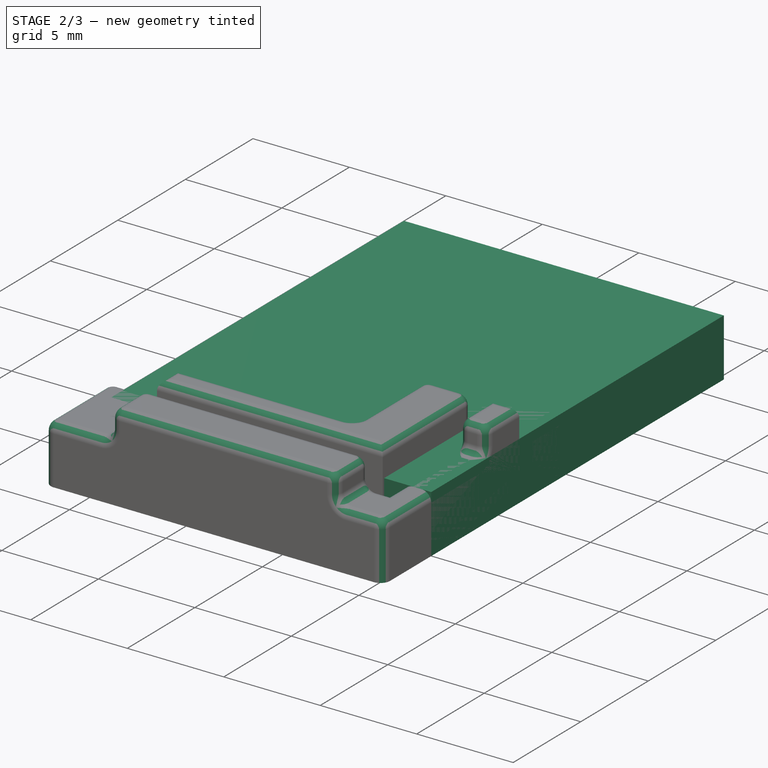
[diagram: stage 2 of 3 — iso view after this stage's code; geometry added in this stage tinted green]
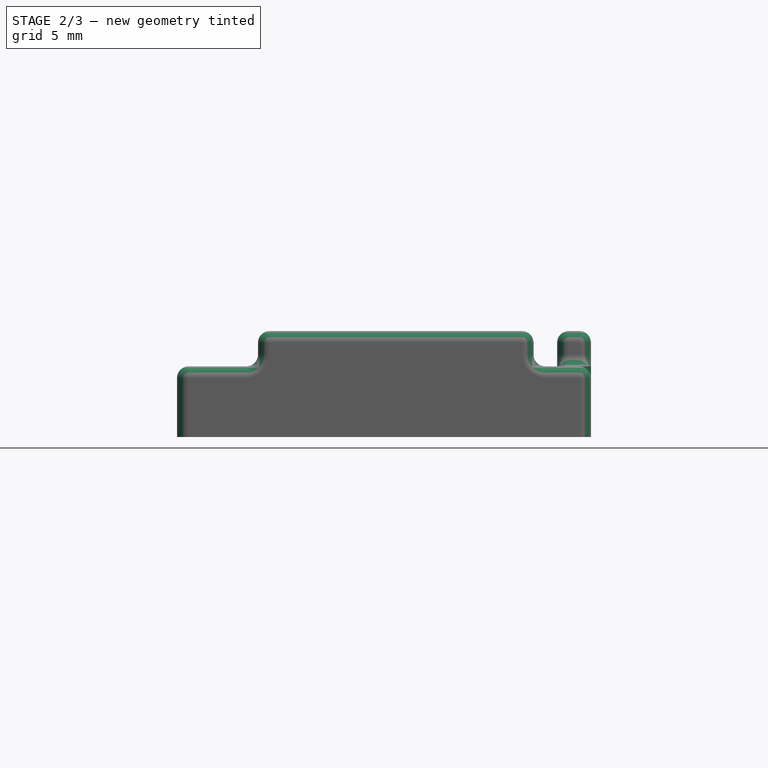
[diagram: stage 2 of 3 — front view after this stage's code; geometry added in this stage tinted green]
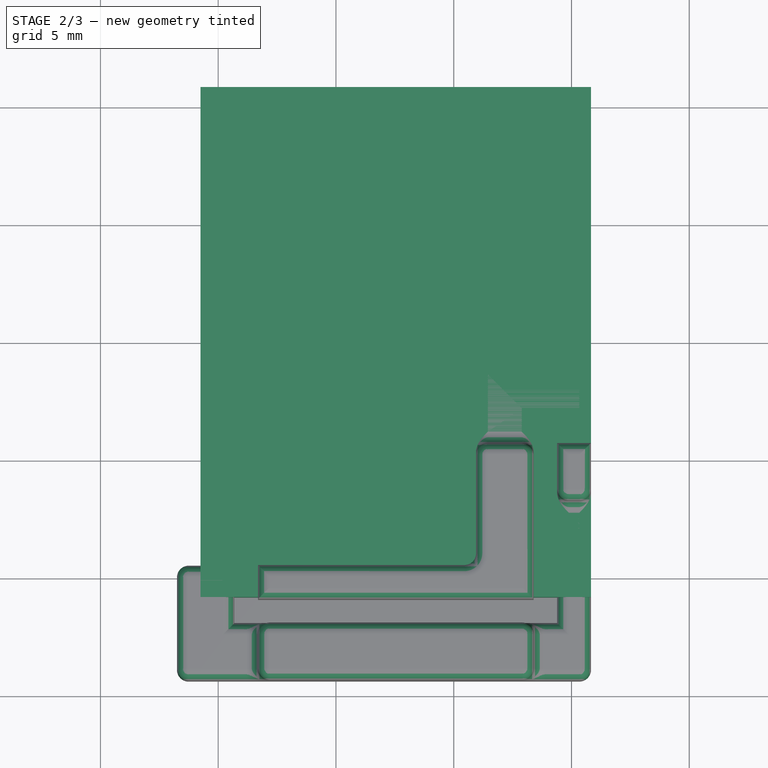
[diagram: stage 2 of 3 — top view after this stage's code; geometry added in this stage tinted green]
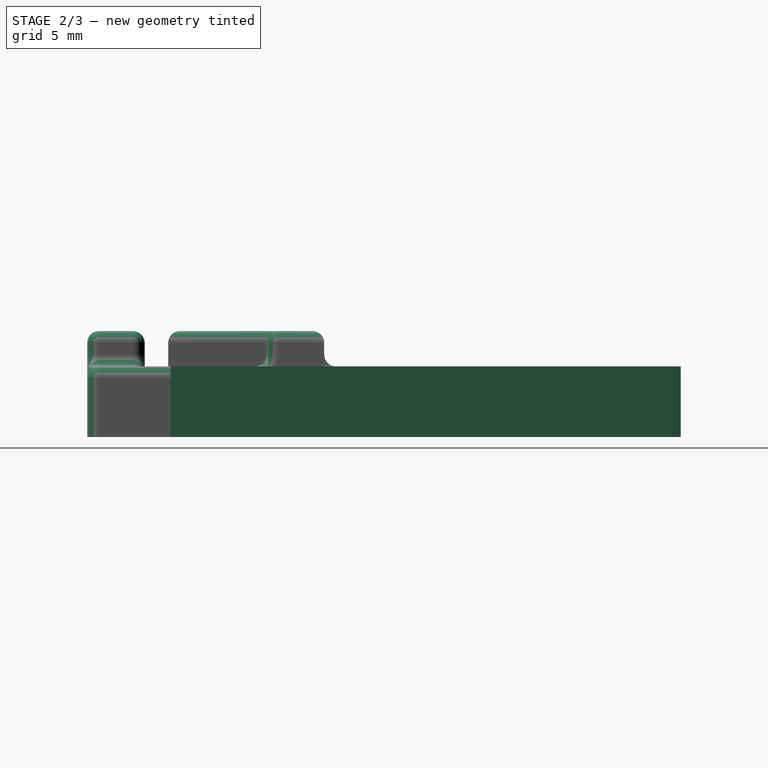
[diagram: stage 2 of 3 — right view after this stage's code; geometry added in this stage tinted green]
FEATURE [Sketcher::SketchObject] Sketch005
  ExternalGeometry = -> [Sketch003]
  MapMode = 5
  Support = -> [XY_Plane001]
  sketch-geometry (6):
    g0: LineSegment StartX=-5.75 StartY=10.83 StartZ=0 EndX=10.83 EndY=10.83 EndZ=0
    g1: LineSegment StartX=10.83 StartY=10.83 StartZ=0 EndX=10.83 EndY=-10.83 EndZ=0
    g2: LineSegment StartX=10.83 StartY=-10.83 StartZ=0 EndX=-5.75 EndY=-10.83 EndZ=0
    g3: LineSegment StartX=-5.75 StartY=-10.83 StartZ=0 EndX=-5.75 EndY=10.83 EndZ=0
    g4: LineSegment StartX=9.39 StartY=6.85 StartZ=0 EndX=10.83 EndY=6.85 EndZ=0
    g5: LineSegment StartX=-3.31 StartY=-9.39 StartZ=0 EndX=-3.31 EndY=-10.83 EndZ=0
  constraints (18):
    c: Coincident(g0,g1)
    c: Coincident(g1,g2)
    c: Coincident(g2,g3)
    c: Coincident(g3,g0)
    c: Horizontal(g0)
    c: Horizontal(g2)
    c: Vertical(g1)
    c: Vertical(g3)
    c: PointOnObject(g-3,g0)
    c: PointOnObject(g-4,g3)
    c: Coincident(g4,g-5)
    c: PointOnObject(g4,g1)
    c: Horizontal(g4)
    c: PointOnObject(g-6,g1)
    c: PointOnObject(g5,g2)
    c: Vertical(g5)
    c: Equal(g5,g4)
    c: Coincident(g5,g-7)
FEATURE [PartDesign::Pad] Pad002
  Direction = (1,1,1)
  Length = 3
  Length2 = 100
  Profile = -> Sketch005
  Type = 0
  expr: Length = Sketch003.AttachmentOffset.Base.z
FEATURE [PartDesign::Body] Body001
  Group = -> [ShapeBinder,Sketch003,Sketch005,Pad002,Pocket001,Sketch006,Pad003,Fillet]
  Origin = -> Origin001
  Placement = pos=(-7,3,0) rot=(0,0,1;0rad)
  Tip = -> Fillet
FEATURE [PartDesign::Fillet] Fillet001
  Base = -> Pad001 [Face12,Face14,Face16,Face15,Face2,Edge5,Edge4,Edge2,Edge1,Face13,Edge48,Edge46,Edge44,Edge45,Edge38,Edge37,Edge66,Edge16,Edge17,Edge36,Edge68,Face9,Edge21,Edge18,Edge22,Edge19,Edge23]
  BaseFeature = -> Pad001
  Radius = 0.5
  SupportTransform = false
FEATURE [PartDesign::Body] Body
  Group = -> [Sketch,Sketch002,Pad,Sketch001,Pocket,Sketch004,Pad001,Fillet001]
  Origin = -> Origin
  Tip = -> Fillet001
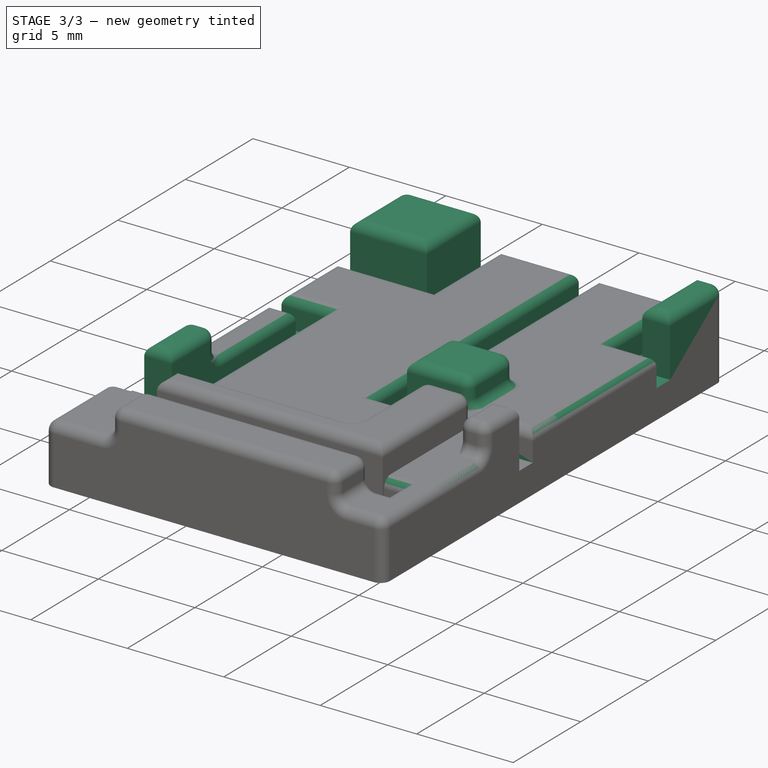
[diagram: stage 3 of 3 — iso view after this stage's code; geometry added in this stage tinted green]
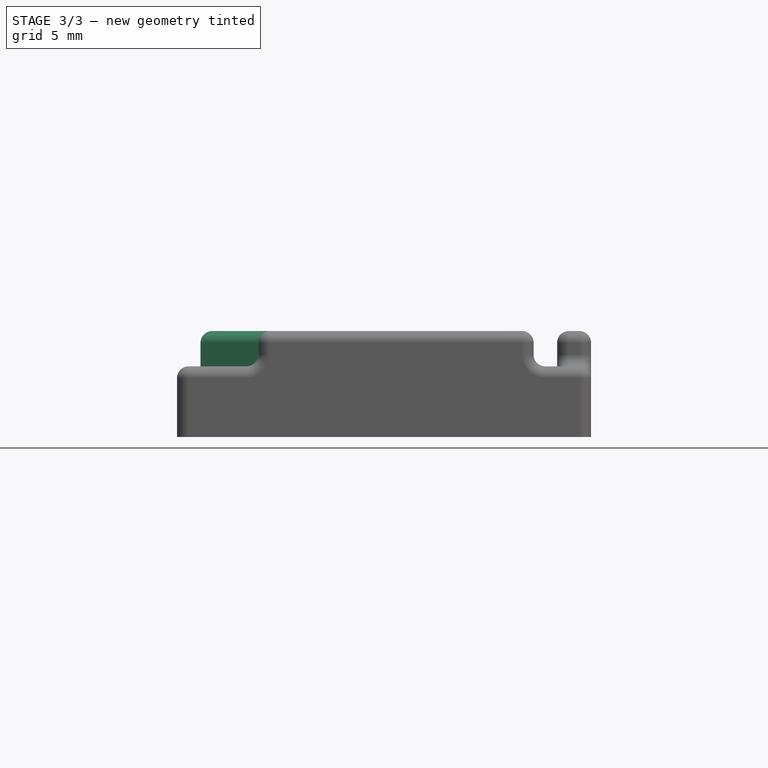
[diagram: stage 3 of 3 — front view after this stage's code; geometry added in this stage tinted green]
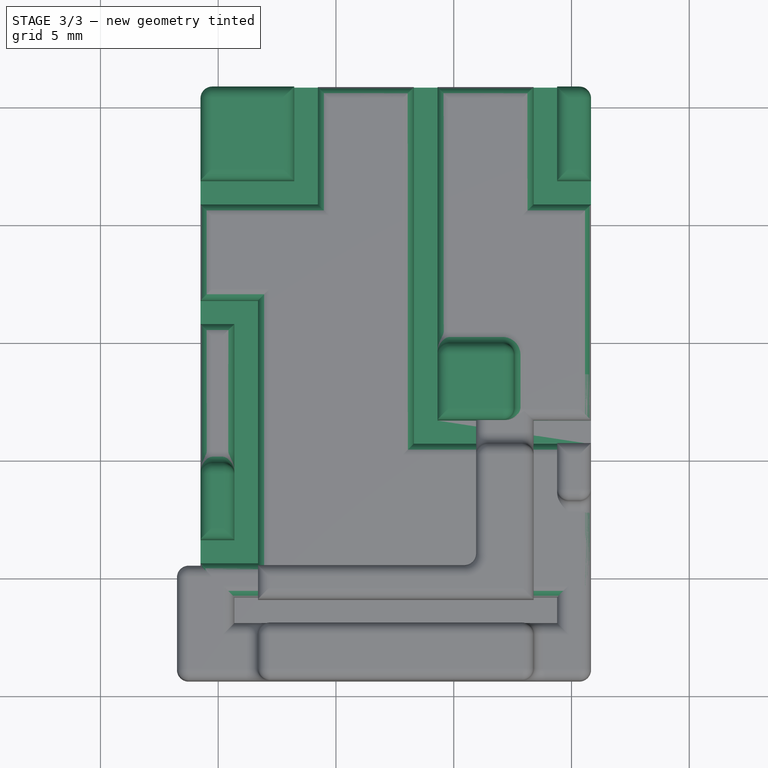
[diagram: stage 3 of 3 — top view after this stage's code; geometry added in this stage tinted green]
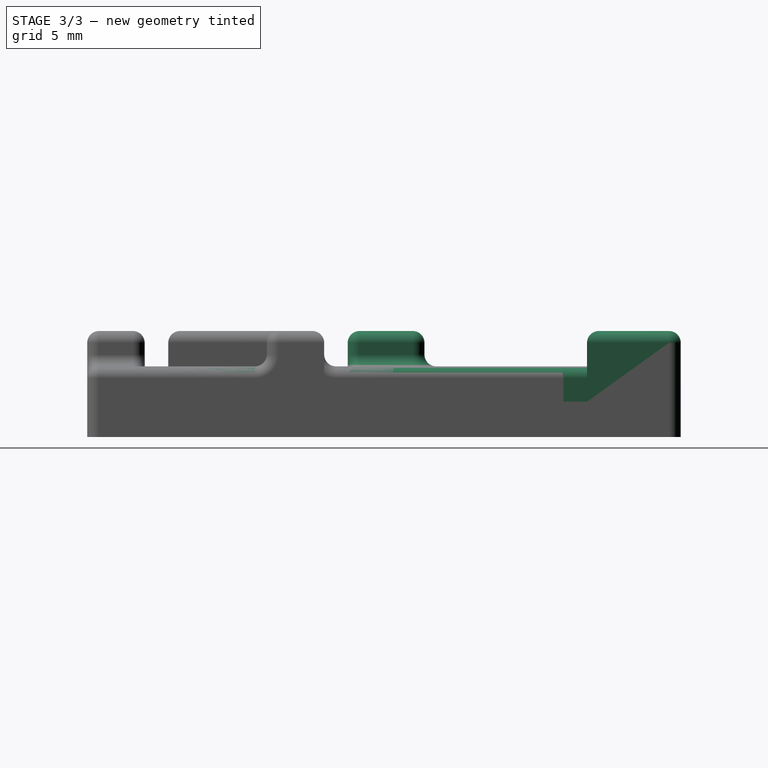
[diagram: stage 3 of 3 — right view after this stage's code; geometry added in this stage tinted green]
FEATURE [PartDesign::Pocket] Pocket001
  BaseFeature = -> Pad002
  Length = 1.5
  Length2 = 100
  Profile = -> Sketch003
  Type = 0
  expr: Length = Pad002.Length / 2
FEATURE [Sketcher::SketchObject] Sketch006
  AttachmentOffset = pos=(0,0,3) rot=(0,0,1;0rad)
  ExternalGeometry = -> [Sketch003]
  MapMode = 5
  Placement = pos=(0,0,3) rot=(0,0,1;0rad)
  Support = -> [XY_Plane001]
  expr: .AttachmentOffset.Base.z = Sketch003.AttachmentOffset.Base.z
  sketch-geometry (16):
    g0: LineSegment StartX=10.83 StartY=6.85 StartZ=0 EndX=9.39 EndY=6.85 EndZ=0
    g1: LineSegment StartX=9.39 StartY=6.85 StartZ=0 EndX=9.39 EndY=10.83 EndZ=0
    g2: LineSegment StartX=9.39 StartY=10.83 StartZ=0 EndX=10.83 EndY=10.83 EndZ=0
    g3: LineSegment StartX=10.83 StartY=10.83 StartZ=0 EndX=10.83 EndY=6.85 EndZ=0
    g4: LineSegment StartX=7.57 StartY=-3.31 StartZ=0 EndX=4.31 EndY=-3.31 EndZ=0
    g5: LineSegment StartX=4.31 StartY=-3.31 StartZ=0 EndX=4.31 EndY=-0.05 EndZ=0
    g6: LineSegment StartX=4.31 StartY=-0.05 StartZ=0 EndX=7.57 EndY=-0.05 EndZ=0
    g7: LineSegment StartX=7.57 StartY=-0.05 StartZ=0 EndX=7.57 EndY=-3.31 EndZ=0
    g8: LineSegment StartX=-1.77 StartY=10.83 StartZ=0 EndX=-5.75 EndY=10.83 EndZ=0
    g9: LineSegment StartX=-5.75 StartY=10.83 StartZ=0 EndX=-5.75 EndY=6.85 EndZ=0
    g10: LineSegment StartX=-5.75 StartY=6.85 StartZ=0 EndX=-1.77 EndY=6.85 EndZ=0
    g11: LineSegment StartX=-1.77 StartY=6.85 StartZ=0 EndX=-1.77 EndY=10.83 EndZ=0
    g12: LineSegment StartX=-4.31 StartY=-8.39 StartZ=0 EndX=-5.75 EndY=-8.39 EndZ=0
    g13: LineSegment StartX=-5.75 StartY=-8.39 StartZ=0 EndX=-5.75 EndY=-5.13 EndZ=0
    g14: LineSegment StartX=-5.75 StartY=-5.13 StartZ=0 EndX=-4.31 EndY=-5.13 EndZ=0
    g15: LineSegment StartX=-4.31 StartY=-5.13 StartZ=0 EndX=-4.31 EndY=-8.39 EndZ=0
  constraints (41):
    c: Coincident(g0,g1)
    c: Coincident(g1,g2)
    c: Coincident(g2,g3)
    c: Coincident(g3,g0)
    c: Horizontal(g0)
    c: Horizontal(g2)
    c: Vertical(g1)
    c: Vertical(g3)
    c: Coincident(g0,g-8)
    c: Coincident(g1,g-7)
    c: Coincident(g4,g5)
    c: Coincident(g5,g6)
    c: Coincident(g6,g7)
    c: Coincident(g7,g4)
    c: Horizontal(g4)
    c: Horizontal(g6)
    c: Vertical(g5)
    c: Vertical(g7)
    c: PointOnObject(g5,g-5)
    c: Symmetric(g4,g-6,g7)
    c: Equal(g6,g7)
    c: Coincident(g8,g9)
    c: Coincident(g9,g10)
    c: Coincident(g10,g11)
    c: Coincident(g11,g8)
    c: Horizontal(g8)
    c: Horizontal(g10)
    c: Vertical(g9)
    c: Vertical(g11)
    c: Coincident(g8,g-4)
    c: Coincident(g9,g-3)
    c: Coincident(g12,g13)
    c: Coincident(g13,g14)
    c: Coincident(g14,g15)
    c: Coincident(g15,g12)
    c: Horizontal(g14)
    c: Vertical(g13)
    c: Vertical(g15)
    c: Coincident(g12,g-10)
    c: Coincident(g12,g-9)
    c: Equal(g15,g5)
FEATURE [PartDesign::Pad] Pad003
  BaseFeature = -> Pocket001
  Direction = (1,1,1)
  Length = 1.5
  Length2 = 100
  Profile = -> Sketch006
  Refine = true
  Type = 0
  expr: Length = Pocket001.Length
FEATURE [PartDesign::Fillet] Fillet
  Base = -> Pad003 [Face5,Face19,Face22,Face27,Face26,Face17,Face16,Edge53,Edge54,Edge51,Edge70,Edge61,Edge6,Edge5,Edge91,Edge88,Edge89]
  BaseFeature = -> Pad003
  Radius = 0.5
  SupportTransform = false
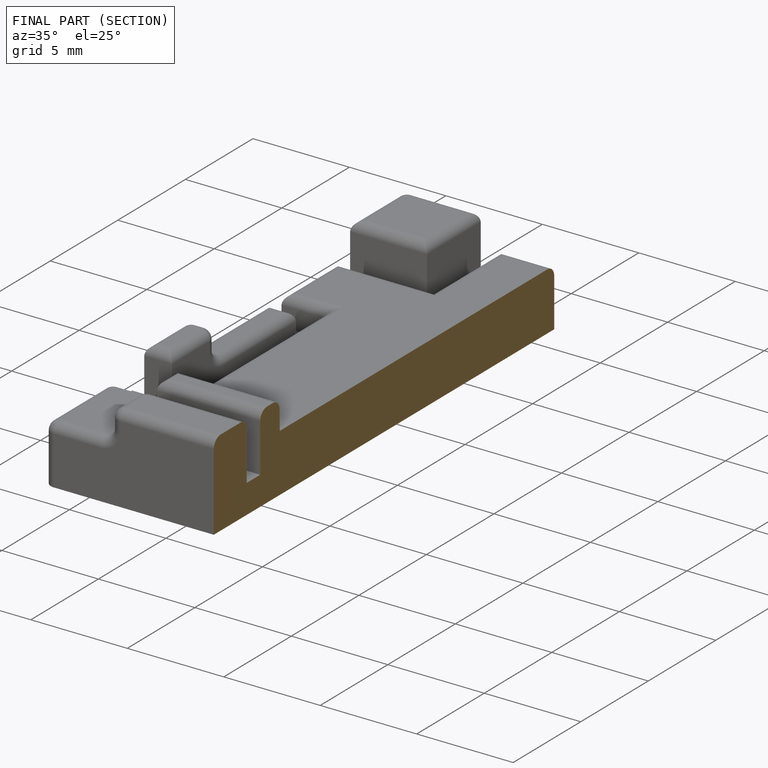
[diagram: finished part — half-section view (interior)]
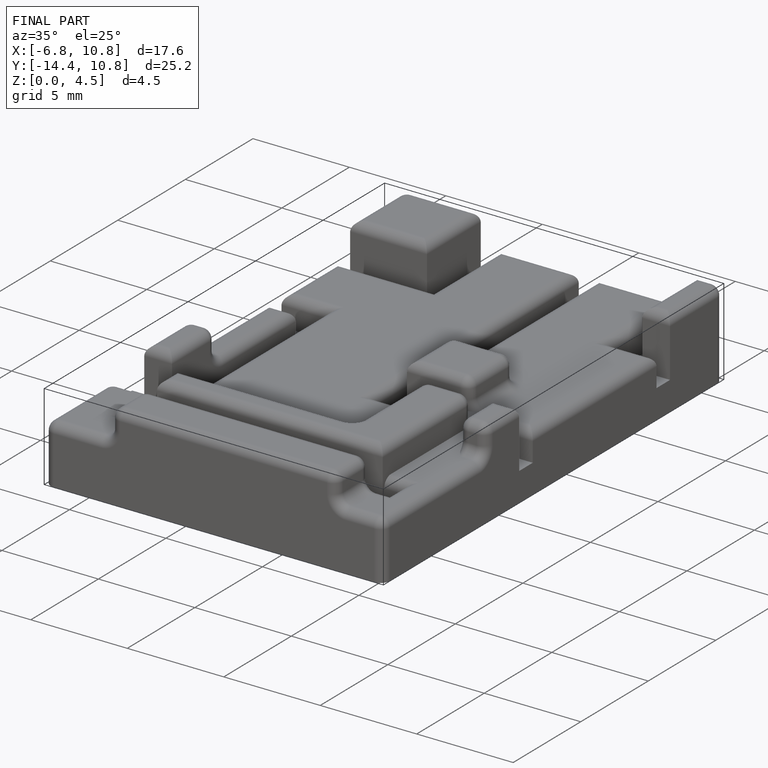
[diagram: finished part — iso view with bounding-box wireframe]
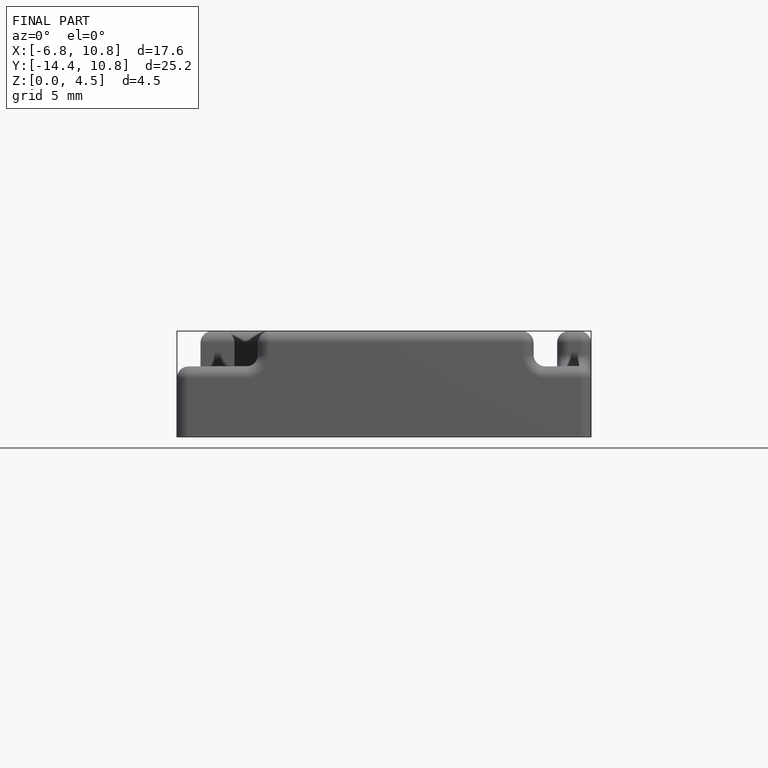
[diagram: finished part — front view with bounding-box wireframe]
